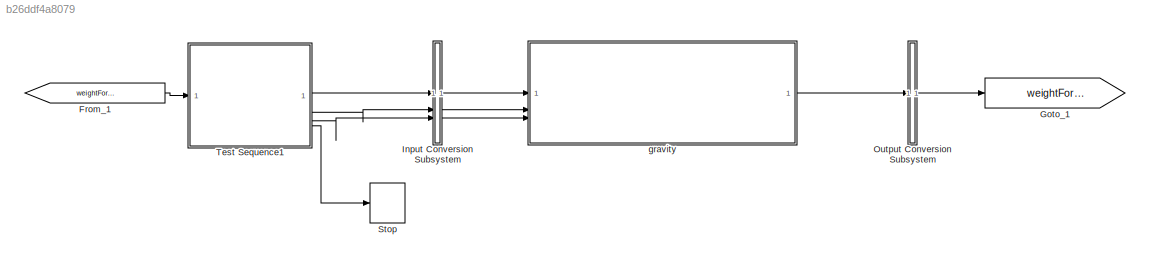
MODEL slx_b26ddf4a8079
KIND model
BLOCK [From] From_1
  GotoTag = weightForcesMoments
BLOCK [Goto] Goto_1
  GotoTag = weightForcesMoments
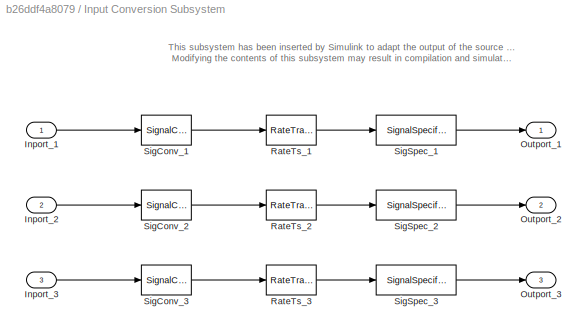
BLOCK [SubSystem] Input Conversion Subsystem
  AttributesFormatString = %<Description>
  Description = Signal spec.\nand routing
  Permissions = ReadOnly
  PermitHierarchicalResolution = ExplicitOnly
  Tag = __SLT_ICS__
  TreatAsGroupedWhenPropagatingVariantConditions = off
  UserDataPersistent = on
BLOCK [Inport] Input Conversion Subsystem/Inport_1
BLOCK [Inport] Input Conversion Subsystem/Inport_2
  Port = 2
BLOCK [Inport] Input Conversion Subsystem/Inport_3
  Port = 3
BLOCK [Outport] Input Conversion Subsystem/Outport_1
BLOCK [Outport] Input Conversion Subsystem/Outport_2
  Port = 2
BLOCK [Outport] Input Conversion Subsystem/Outport_3
  Port = 3
BLOCK [RateTransition] Input Conversion Subsystem/RateTs_1
  OutPortSampleTime = 0.004
BLOCK [RateTransition] Input Conversion Subsystem/RateTs_2
  OutPortSampleTime = 0.004
BLOCK [RateTransition] Input Conversion Subsystem/RateTs_3
  OutPortSampleTime = 0.004
BLOCK [SignalConversion] Input Conversion Subsystem/SigConv_1
  ConversionOutput = Virtual bus
  OverrideOpt = off
BLOCK [SignalConversion] Input Conversion Subsystem/SigConv_2
  ConversionOutput = Virtual bus
  OverrideOpt = off
BLOCK [SignalConversion] Input Conversion Subsystem/SigConv_3
  ConversionOutput = Virtual bus
  OverrideOpt = off
BLOCK [SignalSpecification] Input Conversion Subsystem/SigSpec_1
  OutDataTypeStr = Bus: EarthEnvironmentBus
  SampleTime = 0.004
BLOCK [SignalSpecification] Input Conversion Subsystem/SigSpec_2
  OutDataTypeStr = Bus: BodyStateBus
  SampleTime = 0.004
BLOCK [SignalSpecification] Input Conversion Subsystem/SigSpec_3
  OutDataTypeStr = Bus: MassPropertiesBus
  SampleTime = 0.004
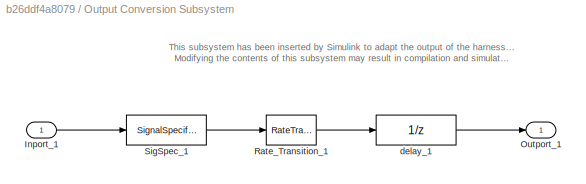
BLOCK [SubSystem] Output Conversion Subsystem
  AttributesFormatString = %<Description>
  Description = Signal spec.\nand routing
  Permissions = ReadOnly
  PermitHierarchicalResolution = ExplicitOnly
  Tag = __SLT_OCS__
  TreatAsGroupedWhenPropagatingVariantConditions = off
  UserDataPersistent = on
BLOCK [Inport] Output Conversion Subsystem/Inport_1
BLOCK [Outport] Output Conversion Subsystem/Outport_1
BLOCK [RateTransition] Output Conversion Subsystem/Rate_Transition_1
  OutPortSampleTimeOpt = Inherit
BLOCK [SignalSpecification] Output Conversion Subsystem/SigSpec_1
  Dimensions = [1]
  OutDataTypeStr = Bus: ComponentForcesMomentsBus
  SampleTime = 0.004
  SignalType = real
  VarSizeSig = No
BLOCK [UnitDelay] Output Conversion Subsystem/delay_1
  InitialCondition = IC1
  SampleTime = -1
BLOCK [Stop] Stop
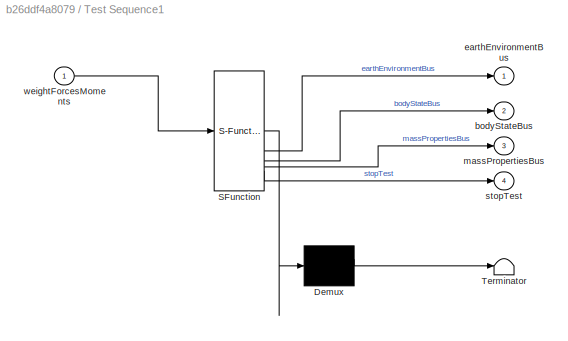
BLOCK [SubSystem] Test Sequence1
  ErrorFcn = Stateflow.Translate.translate
  PermitHierarchicalResolution = ExplicitOnly
  SFBlockType = Test Sequence
  ShowPortLabels = none
  TreatAsAtomicUnit = on
BLOCK [Demux] Test Sequence1/ Demux 
  Outputs = 1
BLOCK [S-Function] Test Sequence1/ SFunction 
  EnableBusSupport = on
  FunctionName = sf_sfun
  Parameters = 1
  PortCounts = [1 5]
  SFcnIsStateOwnerBlock = off
  SFunctionDeploymentMode = off
  Tag = Stateflow S-Function 1
BLOCK [Terminator] Test Sequence1/ Terminator 
BLOCK [Outport] Test Sequence1/bodyStateBus
  Port = 2
BLOCK [Outport] Test Sequence1/earthEnvironmentBus
BLOCK [Outport] Test Sequence1/massPropertiesBus
  Port = 3
BLOCK [Outport] Test Sequence1/stopTest
  Port = 4
BLOCK [Inport] Test Sequence1/weightForcesMoments
BLOCK [ModelReference] gravity
  ModelNameDialog = gravity
  ModelReferenceVersion = 1.26
ANNOTATION Input Conversion Subsystem: This subsystem has been inserted by Simulink to adapt the output of the source blocks to the interface required by the harnessed component. Modifying the contents of this subsystem may result in compilation and simulation failure.
ANNOTATION Output Conversion Subsystem: This subsystem has been inserted by Simulink to adapt the output of the harnessed component to the interface required by the sink blocks. Modifying the contents of this subsystem may result in compilation and simulation failure.
LINE From_1:1 -> Test Sequence1:1
LINE Input Conversion Subsystem/Inport_1:1 -> Input Conversion Subsystem/SigConv_1:1
LINE Input Conversion Subsystem/Inport_2:1 -> Input Conversion Subsystem/SigConv_2:1
LINE Input Conversion Subsystem/Inport_3:1 -> Input Conversion Subsystem/SigConv_3:1
LINE Input Conversion Subsystem/RateTs_1:1 -> Input Conversion Subsystem/SigSpec_1:1
LINE Input Conversion Subsystem/RateTs_2:1 -> Input Conversion Subsystem/SigSpec_2:1
LINE Input Conversion Subsystem/RateTs_3:1 -> Input Conversion Subsystem/SigSpec_3:1
LINE Input Conversion Subsystem/SigConv_1:1 -> Input Conversion Subsystem/RateTs_1:1
LINE Input Conversion Subsystem/SigConv_2:1 -> Input Conversion Subsystem/RateTs_2:1
LINE Input Conversion Subsystem/SigConv_3:1 -> Input Conversion Subsystem/RateTs_3:1
LINE Input Conversion Subsystem/SigSpec_1:1 -> Input Conversion Subsystem/Outport_1:1
LINE Input Conversion Subsystem/SigSpec_2:1 -> Input Conversion Subsystem/Outport_2:1
LINE Input Conversion Subsystem/SigSpec_3:1 -> Input Conversion Subsystem/Outport_3:1
LINE Input Conversion Subsystem:1 -> gravity:1
LINE Input Conversion Subsystem:2 -> gravity:2
LINE Input Conversion Subsystem:3 -> gravity:3
LINE Output Conversion Subsystem/Inport_1:1 -> Output Conversion Subsystem/SigSpec_1:1
LINE Output Conversion Subsystem/Rate_Transition_1:1 -> Output Conversion Subsystem/delay_1:1
LINE Output Conversion Subsystem/SigSpec_1:1 -> Output Conversion Subsystem/Rate_Transition_1:1
LINE Output Conversion Subsystem/delay_1:1 -> Output Conversion Subsystem/Outport_1:1
LINE Output Conversion Subsystem:1 -> Goto_1:1
LINE Test Sequence1:1 -> Input Conversion Subsystem:1
LINE Test Sequence1:2 -> Input Conversion Subsystem:2
LINE Test Sequence1:3 -> Input Conversion Subsystem:3
LINE Test Sequence1:4 -> Stop:1
LINE gravity:1 -> Output Conversion Subsystem:1
CHART Test Sequence1 states=9 transitions=9
  STATE_LABEL 'Scenario_1'
  STATE_LABEL 'Initialize\n\n%% Initialize data outputs.\nstopTest = false;\nearthEnvironmentBus.gravityScalar_mps2 = 0;\nbodyStateBus.aircraftVelInNED_mps = zeros(3,1);\nbodyStateBus.aircraftPosInNED_m = zeros(3,1);\nbodyStateBus.aircraftEulerAngles_rad = zeros(3,1);\nbodyStateBus.aircraftVelInBody_mps = zeros(3,1);\nbodyStateBus.aircraftAngVelInBody_radps = zeros(3,1);\nbodyStateBus.aircraftAngAccelInBody_radps2 = zeros...<+235ch>'
  STATE_LABEL 'Define_Test1_Inputs\n\n% Compute gravity force vector of vehicle aligned with NED frame\nmass_kg = 999;\ngravity_mps2 = 9.81;\nweight_N = mass_kg * gravity_mps2;\n\nmassPropertiesBus.aircraftMass_kg = mass_kg;\nbodyStateBus.DCM_be = eye(3);\nearthEnvironmentBus.gravityScalar_mps2 = gravity_mps2;'
  STATE_LABEL 'Test1\n\nverify(isClose(weightForcesMoments.forcesInBody_N(1), 0));\nverify(isClose(weightForcesMoments.forcesInBody_N(2), 0));\nverify(isClose(weightForcesMoments.forcesInBody_N(3), weight_N));\nverify(isClose(sum(weightForcesMoments.momentsInBody_Nm(1:3)), 0));'
  STATE_LABEL 'Define_Test2_Inputs\n\n% Compute gravity force vector when vehicle is pitched upwards\n\npitch_rad = 30*pi/180\nDCM_be =  [cos(pitch_rad) 0 -sin(pitch_rad);\n    0 1 0;\n    sin(pitch_rad) 0 cos(pitch_rad)];\n\nmassPropertiesBus.aircraftMass_kg = mass_kg;\nbodyStateBus.DCM_be = DCM_be\nearthEnvironmentBus.gravityScalar_mps2 = gravity_mps2;'
  STATE_LABEL 'Test2\n\nverify(isClose(weightForcesMoments.forcesInBody_N(1), -weight_N * sin(pitch_rad)));\nverify(isClose(weightForcesMoments.forcesInBody_N(2), 0));\nverify(isClose(weightForcesMoments.forcesInBody_N(3), weight_N * cos(pitch_rad)));\nverify(isClose(sum(weightForcesMoments.momentsInBody_Nm(1:3)), 0));'
  STATE_LABEL 'Define_Test3_Inputs\n\n% Compute gravity force vector when vehicle is pitched, rolled, and yawed\n\nyaw_rad = 20*pi/180;\npitch_rad = 30*pi/180;\nroll_rad = -10*pi/180;\n\nRx = [1 0 0;\n    0 cos(roll_rad) sin(roll_rad);\n    0 -sin(roll_rad) cos(roll_rad)];\n\nRy =  [cos(pitch_rad) 0 -sin(pitch_rad);\n    0 1 0;\n    sin(pitch_rad) 0 cos(pitch_rad)];\n\nRz = [cos(yaw_rad) sin(yaw_rad) 0;\n    -sin(yaw_rad) cos(ya...<+169ch>'
  STATE_LABEL 'Test3\n\nverify(isClose(weightForcesMoments.forcesInBody_N(1), -weight_N * sin(pitch_rad)));\nverify(isClose(weightForcesMoments.forcesInBody_N(2), weight_N * sin(roll_rad) * cos(pitch_rad)));\nverify(isClose(weightForcesMoments.forcesInBody_N(3), weight_N * cos(roll_rad) * cos(pitch_rad)));\nverify(isClose(sum(weightForcesMoments.momentsInBody_Nm(1:3)), 0));'
  STATE_LABEL 'EndTest\nstopTest = true;'
  STATE_LABEL '[\ntrue\n]'
  STATE_LABEL '[\ntrue\n]'
  STATE_LABEL '[\ntrue\n]'
  STATE_LABEL '[\ntrue\n]'
  STATE_LABEL '[\ntrue\n]'
  STATE_LABEL '[\ntrue\n]'
  STATE_LABEL '[\ntrue\n]'
  STATE_LABEL 'Initialize\n\n%% Initialize data outputs.\nstopTest = false;\nearthEnvironmentBus.gravityScalar_mps2 = 0;\nbodyStateBus.aircraftVelInNED_mps = zeros(3,1);\nbodyStateBus.aircraftPosInNED_m = zeros(3,1);\nbodyStateBus.aircraftEulerAngles_rad = zeros(3,1);\nbodyStateBus.aircraftVelInBody_mps = zeros(3,1);\nbodyStateBus.aircraftAngVelInBody_radps = zeros(3,1);\nbodyStateBus.aircraftAngAccelInBody_radps2 = zeros...<+235ch>'
  STATE_LABEL 'Define_Test1_Inputs\n\n% Compute gravity force vector of vehicle aligned with NED frame\nmass_kg = 999;\ngravity_mps2 = 9.81;\nweight_N = mass_kg * gravity_mps2;\n\nmassPropertiesBus.aircraftMass_kg = mass_kg;\nbodyStateBus.DCM_be = eye(3);\nearthEnvironmentBus.gravityScalar_mps2 = gravity_mps2;'
  STATE_LABEL 'Test1\n\nverify(isClose(weightForcesMoments.forcesInBody_N(1), 0));\nverify(isClose(weightForcesMoments.forcesInBody_N(2), 0));\nverify(isClose(weightForcesMoments.forcesInBody_N(3), weight_N));\nverify(isClose(sum(weightForcesMoments.momentsInBody_Nm(1:3)), 0));'
  STATE_LABEL 'Define_Test2_Inputs\n\n% Compute gravity force vector when vehicle is pitched upwards\n\npitch_rad = 30*pi/180\nDCM_be =  [cos(pitch_rad) 0 -sin(pitch_rad);\n    0 1 0;\n    sin(pitch_rad) 0 cos(pitch_rad)];\n\nmassPropertiesBus.aircraftMass_kg = mass_kg;\nbodyStateBus.DCM_be = DCM_be\nearthEnvironmentBus.gravityScalar_mps2 = gravity_mps2;'
  STATE_LABEL 'Test2\n\nverify(isClose(weightForcesMoments.forcesInBody_N(1), -weight_N * sin(pitch_rad)));\nverify(isClose(weightForcesMoments.forcesInBody_N(2), 0));\nverify(isClose(weightForcesMoments.forcesInBody_N(3), weight_N * cos(pitch_rad)));\nverify(isClose(sum(weightForcesMoments.momentsInBody_Nm(1:3)), 0));'
  STATE_LABEL 'Define_Test3_Inputs\n\n% Compute gravity force vector when vehicle is pitched, rolled, and yawed\n\nyaw_rad = 20*pi/180;\npitch_rad = 30*pi/180;\nroll_rad = -10*pi/180;\n\nRx = [1 0 0;\n    0 cos(roll_rad) sin(roll_rad);\n    0 -sin(roll_rad) cos(roll_rad)];\n\nRy =  [cos(pitch_rad) 0 -sin(pitch_rad);\n    0 1 0;\n    sin(pitch_rad) 0 cos(pitch_rad)];\n\nRz = [cos(yaw_rad) sin(yaw_rad) 0;\n    -sin(yaw_rad) cos(ya...<+169ch>'
  STATE_LABEL 'Test3\n\nverify(isClose(weightForcesMoments.forcesInBody_N(1), -weight_N * sin(pitch_rad)));\nverify(isClose(weightForcesMoments.forcesInBody_N(2), weight_N * sin(roll_rad) * cos(pitch_rad)));\nverify(isClose(weightForcesMoments.forcesInBody_N(3), weight_N * cos(roll_rad) * cos(pitch_rad)));\nverify(isClose(sum(weightForcesMoments.momentsInBody_Nm(1:3)), 0));'
  STATE_LABEL 'EndTest\nstopTest = true;'
